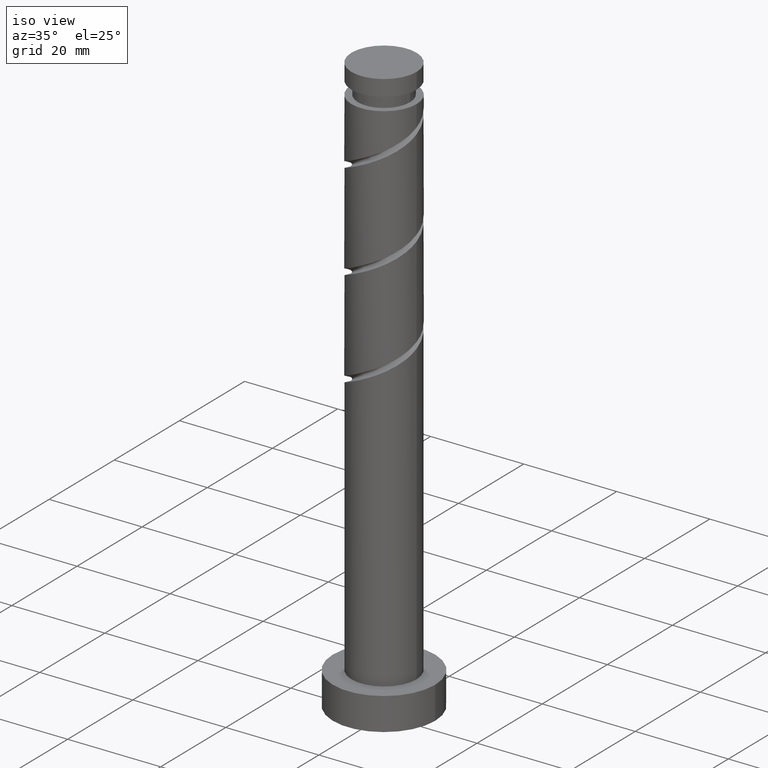
[diagram: clean part render]
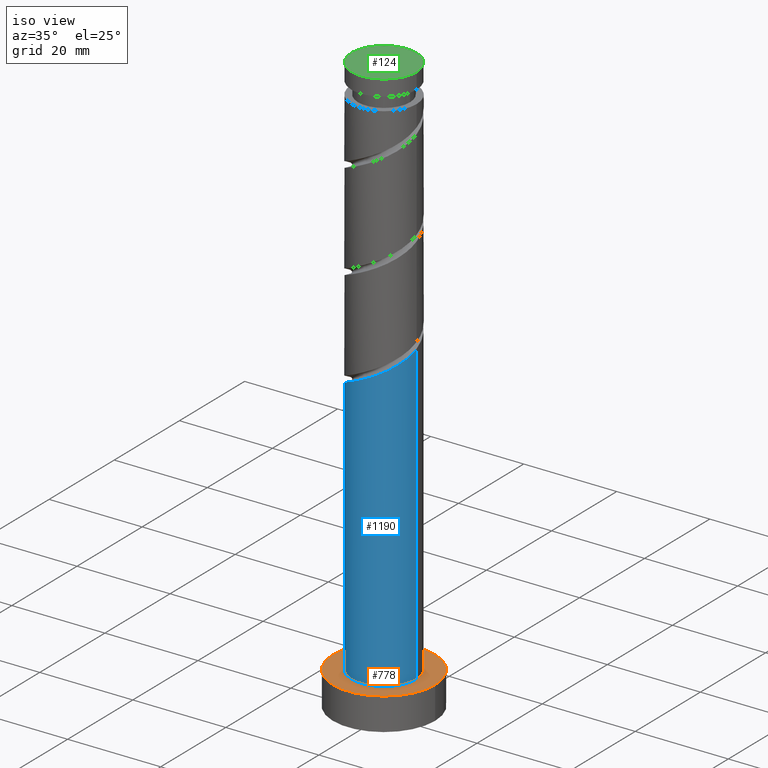
[diagram: same view with three faces highlighted in distinct colors, each labeled with its STEP entity id]
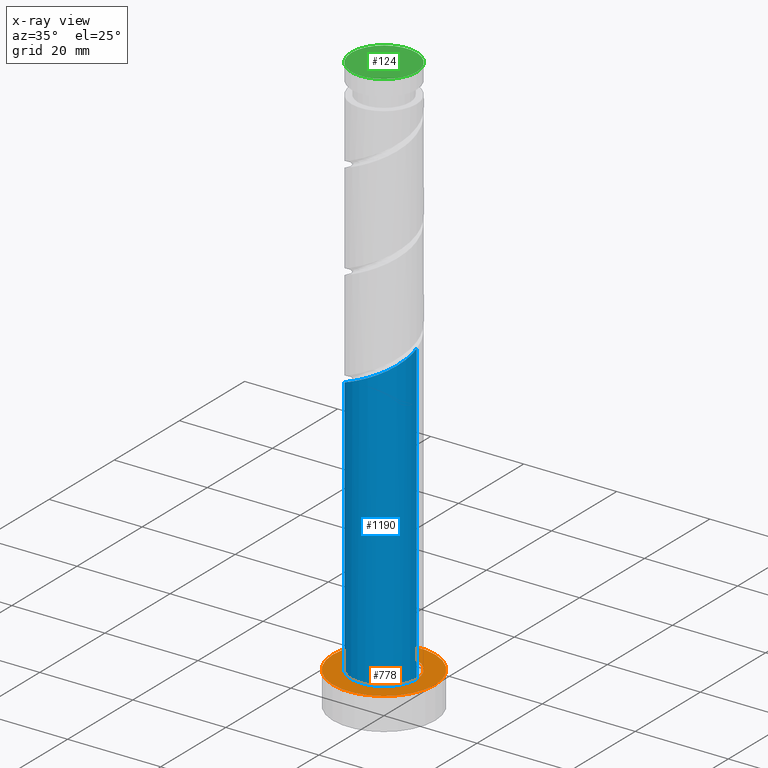
[diagram: x-ray of the same camera — body ghosted, the three highlighted faces saturated]
A machine part, iso view with three faces highlighted in distinct colors.
The next image is the same camera in x-ray (body ghosted, the three faces saturated) — at least one of them is partly hidden behind the body in this view.
Their STEP definitions:

[orange] entity #778 — the highlighted planar face has unit normal (0, 0, 1).
#49 = DIRECTION ( 'NONE',  ( 1.000000000000000000, 0.000000000000000000, -0.000000000000000000 ) ) ;
#73 = CARTESIAN_POINT ( 'NONE',  ( 0.000000000000000000, 0.000000000000000000, 7.000000000000000000 ) ) ;
#120 = DIRECTION ( 'NONE',  ( 1.000000000000000000, 0.000000000000000000, 0.000000000000000000 ) ) ;
#164 = FACE_OUTER_BOUND ( 'NONE', #471, .T. ) ;
#174 = FACE_BOUND ( 'NONE', #1464, .T. ) ;
#186 = CARTESIAN_POINT ( 'NONE',  ( -7.000000000000000888, 0.000000000000000000, 7.000000000000000000 ) ) ;
#197 = CARTESIAN_POINT ( 'NONE',  ( 0.000000000000000000, 0.000000000000000000, 7.000000000000000000 ) ) ;
#201 = EDGE_CURVE ( 'NONE', #1218, #1430, #904, .T. ) ;
#229 = EDGE_CURVE ( 'NONE', #1121, #967, #611, .T. ) ;
#232 = ORIENTED_EDGE ( 'NONE', *, *, #201, .F. ) ;
#298 = DIRECTION ( 'NONE',  ( 0.000000000000000000, 0.000000000000000000, 1.000000000000000000 ) ) ;
#328 = DIRECTION ( 'NONE',  ( 1.000000000000000000, 0.000000000000000000, 0.000000000000000000 ) ) ;
#339 = CARTESIAN_POINT ( 'NONE',  ( 0.000000000000000000, 0.000000000000000000, 7.000000000000000000 ) ) ;
#389 = CARTESIAN_POINT ( 'NONE',  ( 7.000000000000000888, 8.572527594031474176E-16, 7.000000000000000000 ) ) ;
#417 = DIRECTION ( 'NONE',  ( 1.000000000000000000, 0.000000000000000000, 0.000000000000000000 ) ) ;
#435 = AXIS2_PLACEMENT_3D ( 'NONE', #652, #1287, #49 ) ;
#448 = ORIENTED_EDGE ( 'NONE', *, *, #915, .T. ) ;
#459 = CARTESIAN_POINT ( 'NONE',  ( 0.000000000000000000, 0.000000000000000000, 7.000000000000000000 ) ) ;
#464 = EDGE_CURVE ( 'NONE', #1430, #1218, #1562, .T. ) ;
#471 = EDGE_LOOP ( 'NONE', ( #448, #612 ) ) ;
#549 = DIRECTION ( 'NONE',  ( 0.000000000000000000, 0.000000000000000000, 1.000000000000000000 ) ) ;
#564 = AXIS2_PLACEMENT_3D ( 'NONE', #339, #595, #821 ) ;
#595 = DIRECTION ( 'NONE',  ( 0.000000000000000000, 0.000000000000000000, 1.000000000000000000 ) ) ;
#611 = CIRCLE ( 'NONE', #564, 11.00000000000000000 ) ;
#612 = ORIENTED_EDGE ( 'NONE', *, *, #229, .T. ) ;
#613 = AXIS2_PLACEMENT_3D ( 'NONE', #459, #1544, #328 ) ;
#652 = CARTESIAN_POINT ( 'NONE',  ( 0.000000000000000000, 0.000000000000000000, 7.000000000000000000 ) ) ;
#778 = ADVANCED_FACE ( 'NONE', ( #174, #164 ), #1015, .T. ) ;
#821 = DIRECTION ( 'NONE',  ( 1.000000000000000000, 0.000000000000000000, 0.000000000000000000 ) ) ;
#835 = CARTESIAN_POINT ( 'NONE',  ( -11.00000000000000000, 0.000000000000000000, 7.000000000000000000 ) ) ;
#873 = AXIS2_PLACEMENT_3D ( 'NONE', #197, #298, #417 ) ;
#904 = CIRCLE ( 'NONE', #1106, 7.000000000000000888 ) ;
#915 = EDGE_CURVE ( 'NONE', #967, #1121, #1040, .T. ) ;
#967 = VERTEX_POINT ( 'NONE', #835 ) ;
#1015 = PLANE ( 'NONE',  #435 ) ;
#1040 = CIRCLE ( 'NONE', #613, 11.00000000000000000 ) ;
#1106 = AXIS2_PLACEMENT_3D ( 'NONE', #73, #549, #120 ) ;
#1121 = VERTEX_POINT ( 'NONE', #1538 ) ;
#1218 = VERTEX_POINT ( 'NONE', #389 ) ;
#1287 = DIRECTION ( 'NONE',  ( 0.000000000000000000, 0.000000000000000000, 1.000000000000000000 ) ) ;
#1430 = VERTEX_POINT ( 'NONE', #186 ) ;
#1464 = EDGE_LOOP ( 'NONE', ( #1554, #232 ) ) ;
#1538 = CARTESIAN_POINT ( 'NONE',  ( 11.00000000000000000, 1.347111479062088405E-15, 7.000000000000000000 ) ) ;
#1544 = DIRECTION ( 'NONE',  ( 0.000000000000000000, 0.000000000000000000, 1.000000000000000000 ) ) ;
#1554 = ORIENTED_EDGE ( 'NONE', *, *, #464, .F. ) ;
#1562 = CIRCLE ( 'NONE', #873, 7.000000000000000888 ) ;

[blue] entity #1190 — the highlighted cylindrical surface (partial cylindrical patch) has radius 7 mm, axis along (-0, -0, -1).
#63 = CYLINDRICAL_SURFACE ( 'NONE', #592, 7.000000000000000888 ) ;
#96 = CARTESIAN_POINT ( 'NONE',  ( -4.731082062965570323, -5.159153274858735649, 63.53604895504086159 ) ) ;
#102 = CARTESIAN_POINT ( 'NONE',  ( -1.896568314209449824, -6.828779140186465924, 65.09854895504085448 ) ) ;
#186 = CARTESIAN_POINT ( 'NONE',  ( -7.000000000000000888, 0.000000000000000000, 7.000000000000000000 ) ) ;
#197 = CARTESIAN_POINT ( 'NONE',  ( 0.000000000000000000, 0.000000000000000000, 7.000000000000000000 ) ) ;
#199 = CARTESIAN_POINT ( 'NONE',  ( 5.908483059530990289, -3.913952458978571247, 69.26521562170751167 ) ) ;
#211 = CARTESIAN_POINT ( 'NONE',  ( -6.093792463627037748, -3.444661581381035731, 62.49438228837419018 ) ) ;
#217 = CARTESIAN_POINT ( 'NONE',  ( -2.905260386594010313, -6.368631099858727218, 64.57771562170751167 ) ) ;
#286 = CARTESIAN_POINT ( 'NONE',  ( 7.000000000000000888, 8.572527594031474176E-16, 125.0000000000000000 ) ) ;
#291 = CARTESIAN_POINT ( 'NONE',  ( -7.000000000000000888, 0.000000000000000000, 125.0000000000000000 ) ) ;
#294 = DIRECTION ( 'NONE',  ( -0.000000000000000000, -0.000000000000000000, -1.000000000000000000 ) ) ;
#298 = DIRECTION ( 'NONE',  ( 0.000000000000000000, 0.000000000000000000, 1.000000000000000000 ) ) ;
#304 = DIRECTION ( 'NONE',  ( -1.000000000000000000, 0.000000000000000000, 0.000000000000000000 ) ) ;
#318 = CARTESIAN_POINT ( 'NONE',  ( -7.000000000000012434, -6.387061785645645347E-15, 60.78791318023724699 ) ) ;
#369 = CARTESIAN_POINT ( 'NONE',  ( 6.954702939942492002, -0.7950515814432513872, 70.82771562170752588 ) ) ;
#389 = CARTESIAN_POINT ( 'NONE',  ( 7.000000000000000888, 8.572527594031474176E-16, 7.000000000000000000 ) ) ;
#394 = VERTEX_POINT ( 'NONE', #1371 ) ;
#417 = DIRECTION ( 'NONE',  ( 1.000000000000000000, 0.000000000000000000, 0.000000000000000000 ) ) ;
#425 = CARTESIAN_POINT ( 'NONE',  ( 4.409823490186480122, -5.548211666952570731, 68.22354895504085448 ) ) ;
#464 = EDGE_CURVE ( 'NONE', #1430, #1218, #1562, .T. ) ;
#483 = ORIENTED_EDGE ( 'NONE', *, *, #1022, .F. ) ;
#572 = DIRECTION ( 'NONE',  ( -0.000000000000000000, -0.000000000000000000, -1.000000000000000000 ) ) ;
#580 = CARTESIAN_POINT ( 'NONE',  ( 1.392982411949269084, -6.860000000000011866, 66.66104895504086869 ) ) ;
#592 = AXIS2_PLACEMENT_3D ( 'NONE', #1519, #294, #304 ) ;
#615 = CARTESIAN_POINT ( 'NONE',  ( 7.000000000000011546, 5.397517001954066779E-15, 71.20457984690392550 ) ) ;
#674 = CARTESIAN_POINT ( 'NONE',  ( 6.368631099858727218, -2.905260386594010313, 69.78604895504085448 ) ) ;
#798 = VERTEX_POINT ( 'NONE', #1388 ) ;
#833 = CARTESIAN_POINT ( 'NONE',  ( 2.479499672575590008, -6.639373260301504764, 67.18188228837418308 ) ) ;
#843 = ORIENTED_EDGE ( 'NONE', *, *, #464, .T. ) ;
#873 = AXIS2_PLACEMENT_3D ( 'NONE', #197, #298, #417 ) ;
#889 = LINE ( 'NONE', #286, #1008 ) ;
#923 = CARTESIAN_POINT ( 'NONE',  ( 5.159153274858735649, -4.731082062965570323, 68.74438228837419729 ) ) ;
#956 = CARTESIAN_POINT ( 'NONE',  ( 0.3064651513229476043, -7.080626739698518968, 66.14021562170752588 ) ) ;
#1008 = VECTOR ( 'NONE', #1376, 1000.000000000000000 ) ;
#1022 = EDGE_CURVE ( 'NONE', #798, #394, #1555, .T. ) ;
#1072 = CARTESIAN_POINT ( 'NONE',  ( -0.7950515814432511652, -6.954702939942492002, 65.61938228837419729 ) ) ;
#1086 = VECTOR ( 'NONE', #572, 1000.000000000000000 ) ;
#1102 = EDGE_LOOP ( 'NONE', ( #1522, #483, #1229, #843 ) ) ;
#1105 = EDGE_CURVE ( 'NONE', #798, #1430, #1306, .T. ) ;
#1156 = FACE_OUTER_BOUND ( 'NONE', #1102, .T. ) ;
#1158 = EDGE_CURVE ( 'NONE', #394, #1218, #889, .T. ) ;
#1172 = CARTESIAN_POINT ( 'NONE',  ( 6.828779140186465924, -1.896568314209450046, 70.30688228837415465 ) ) ;
#1190 = ADVANCED_FACE ( 'NONE', ( #1156 ), #63, .T. ) ;
#1218 = VERTEX_POINT ( 'NONE', #389 ) ;
#1229 = ORIENTED_EDGE ( 'NONE', *, *, #1105, .T. ) ;
#1233 = CARTESIAN_POINT ( 'NONE',  ( 7.000000000000013323, -0.3988161621250317368, 71.01506875769665328 ) ) ;
#1295 = CARTESIAN_POINT ( 'NONE',  ( -6.639373260301504764, -2.479499672575590896, 61.97354895504086159 ) ) ;
#1306 = LINE ( 'NONE', #291, #1086 ) ;
#1310 = CARTESIAN_POINT ( 'NONE',  ( -7.000000000000011546, -0.7035264706814539082, 61.12221775564510295 ) ) ;
#1371 = CARTESIAN_POINT ( 'NONE',  ( 7.000000000000011546, 5.397517001954066779E-15, 71.20457984690392550 ) ) ;
#1376 = DIRECTION ( 'NONE',  ( -0.000000000000000000, -0.000000000000000000, -1.000000000000000000 ) ) ;
#1388 = CARTESIAN_POINT ( 'NONE',  ( -7.000000000000011546, -6.387061785645645347E-15, 60.78791318023725410 ) ) ;
#1430 = VERTEX_POINT ( 'NONE', #186 ) ;
#1432 = CARTESIAN_POINT ( 'NONE',  ( -6.860000000000011866, -1.392982411949269084, 61.45271562170752588 ) ) ;
#1442 = CARTESIAN_POINT ( 'NONE',  ( -5.548211666952570731, -4.409823490186481010, 63.01521562170751878 ) ) ;
#1519 = CARTESIAN_POINT ( 'NONE',  ( 0.000000000000000000, 0.000000000000000000, 125.0000000000000000 ) ) ;
#1522 = ORIENTED_EDGE ( 'NONE', *, *, #1158, .F. ) ;
#1527 = CARTESIAN_POINT ( 'NONE',  ( -3.913952458978570359, -5.908483059530989401, 64.05688228837418308 ) ) ;
#1551 = CARTESIAN_POINT ( 'NONE',  ( 3.444661581381035731, -6.093792463627037748, 67.70271562170751167 ) ) ;
#1555 =( BOUNDED_CURVE ( )  B_SPLINE_CURVE ( 2, ( #318, #1310, #1432, #1295, #211, #1442, #96, #1527, #217, #102, #1072, #956, #580, #833, #1551, #425, #923, #199, #674, #1172, #369, #1233, #615 ),
 .UNSPECIFIED., .F., .T. ) 
 B_SPLINE_CURVE_WITH_KNOTS ( ( 3, 2, 2, 2, 2, 2, 2, 2, 2, 2, 2, 3 ),
 ( 0.05453220231385527000, 0.06250000000000000000, 0.07499999999999995559, 0.08750000000000002220, 0.09999999999999997780, 0.1125000000000000444, 0.1250000000000000000, 0.1374999999999999556, 0.1500000000000000222, 0.1624999999999999778, 0.1750000000000000444, 0.1795322023138552214 ),
 .UNSPECIFIED. ) 
 CURVE ( )  GEOMETRIC_REPRESENTATION_ITEM ( )  RATIONAL_B_SPLINE_CURVE ( ( 0.9039174447099389553, 0.9019565955404682533, 0.9090909090909166101, 0.8978984914501326742, 0.9090909090909166101, 0.8978984914501326742, 0.9090909090909166101, 0.8978984914501326742, 0.9090909090909166101, 0.8978984914501326742, 0.9090909090909166101, 0.8978984914501326742, 0.9090909090909166101, 0.8978984914501326742, 0.9090909090909166101, 0.8978984914501326742, 0.9090909090909166101, 0.8978984914501326742, 0.9090909090909166101, 0.8978984914501326742, 0.9090909090909166101, 0.9050328050005809200, 0.9039174447099388443 ) ) 
 REPRESENTATION_ITEM ( '' )  );
#1562 = CIRCLE ( 'NONE', #873, 7.000000000000000888 ) ;

[green] entity #124 — the highlighted planar face has unit normal (0, 0, 1).
#8 = CIRCLE ( 'NONE', #66, 7.000000000000000888 ) ;
#36 = PLANE ( 'NONE',  #1213 ) ;
#66 = AXIS2_PLACEMENT_3D ( 'NONE', #509, #711, #374 ) ;
#104 = DIRECTION ( 'NONE',  ( 0.000000000000000000, 0.000000000000000000, 1.000000000000000000 ) ) ;
#124 = ADVANCED_FACE ( 'NONE', ( #635 ), #36, .T. ) ;
#349 = EDGE_LOOP ( 'NONE', ( #1541, #718 ) ) ;
#356 = CARTESIAN_POINT ( 'NONE',  ( -7.000000000000000888, 0.000000000000000000, 125.0000000000000000 ) ) ;
#374 = DIRECTION ( 'NONE',  ( 1.000000000000000000, 0.000000000000000000, 0.000000000000000000 ) ) ;
#509 = CARTESIAN_POINT ( 'NONE',  ( 0.000000000000000000, 0.000000000000000000, 125.0000000000000000 ) ) ;
#518 = CARTESIAN_POINT ( 'NONE',  ( 0.000000000000000000, 0.000000000000000000, 125.0000000000000000 ) ) ;
#626 = DIRECTION ( 'NONE',  ( 0.000000000000000000, 0.000000000000000000, 1.000000000000000000 ) ) ;
#635 = FACE_OUTER_BOUND ( 'NONE', #349, .T. ) ;
#639 = VERTEX_POINT ( 'NONE', #356 ) ;
#691 = EDGE_CURVE ( 'NONE', #1249, #639, #8, .T. ) ;
#711 = DIRECTION ( 'NONE',  ( 0.000000000000000000, 0.000000000000000000, 1.000000000000000000 ) ) ;
#718 = ORIENTED_EDGE ( 'NONE', *, *, #691, .T. ) ;
#742 = DIRECTION ( 'NONE',  ( 1.000000000000000000, 0.000000000000000000, -0.000000000000000000 ) ) ;
#824 = DIRECTION ( 'NONE',  ( 1.000000000000000000, 0.000000000000000000, 0.000000000000000000 ) ) ;
#1182 = CARTESIAN_POINT ( 'NONE',  ( 0.000000000000000000, 0.000000000000000000, 125.0000000000000000 ) ) ;
#1213 = AXIS2_PLACEMENT_3D ( 'NONE', #518, #626, #742 ) ;
#1249 = VERTEX_POINT ( 'NONE', #1395 ) ;
#1343 = EDGE_CURVE ( 'NONE', #639, #1249, #1458, .T. ) ;
#1358 = AXIS2_PLACEMENT_3D ( 'NONE', #1182, #104, #824 ) ;
#1395 = CARTESIAN_POINT ( 'NONE',  ( 7.000000000000000888, 8.572527594031474176E-16, 125.0000000000000000 ) ) ;
#1458 = CIRCLE ( 'NONE', #1358, 7.000000000000000888 ) ;
#1541 = ORIENTED_EDGE ( 'NONE', *, *, #1343, .T. ) ;